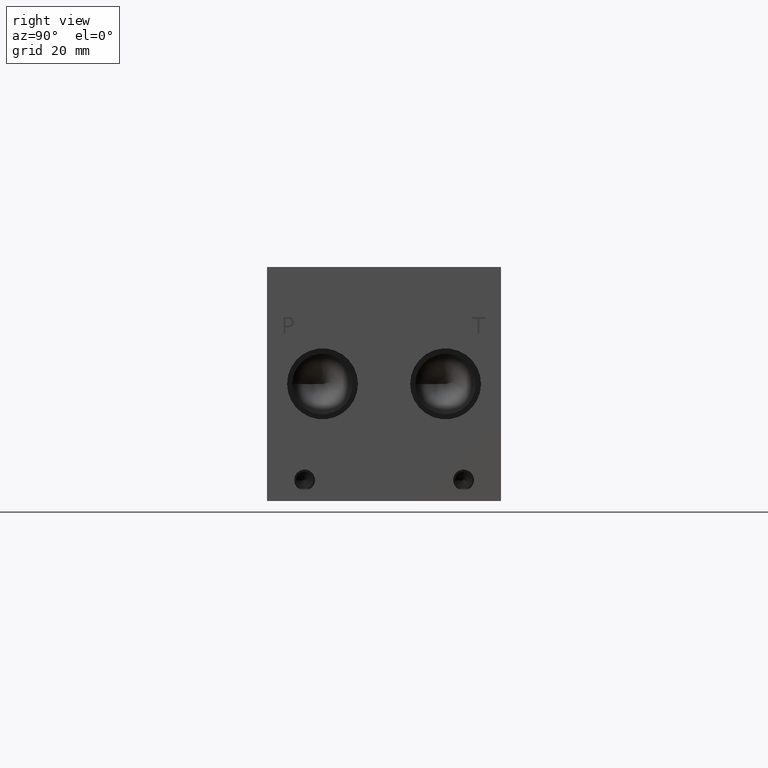
[diagram: clean part render]
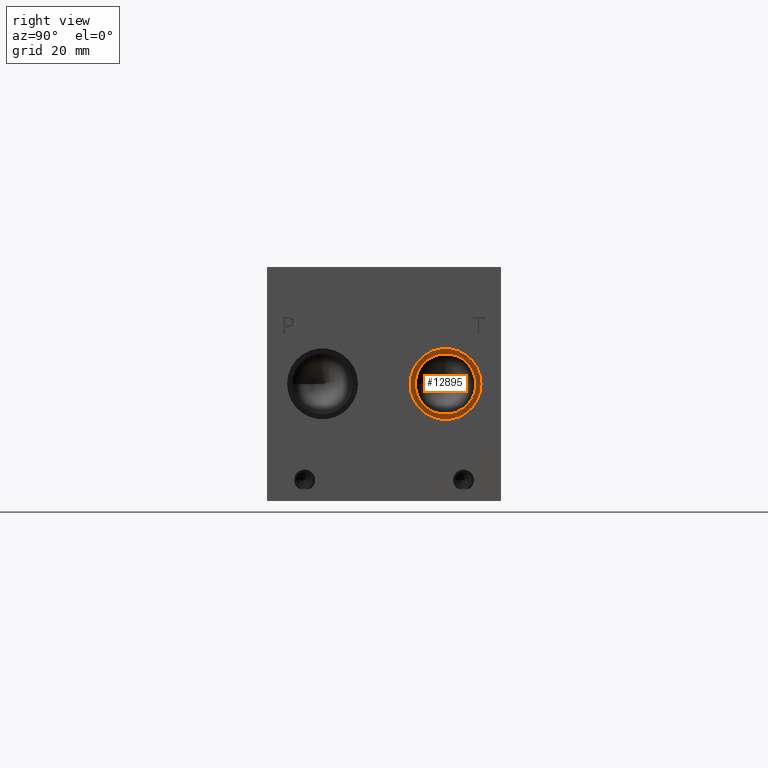
[diagram: same view with one face highlighted and labeled with its STEP entity id]
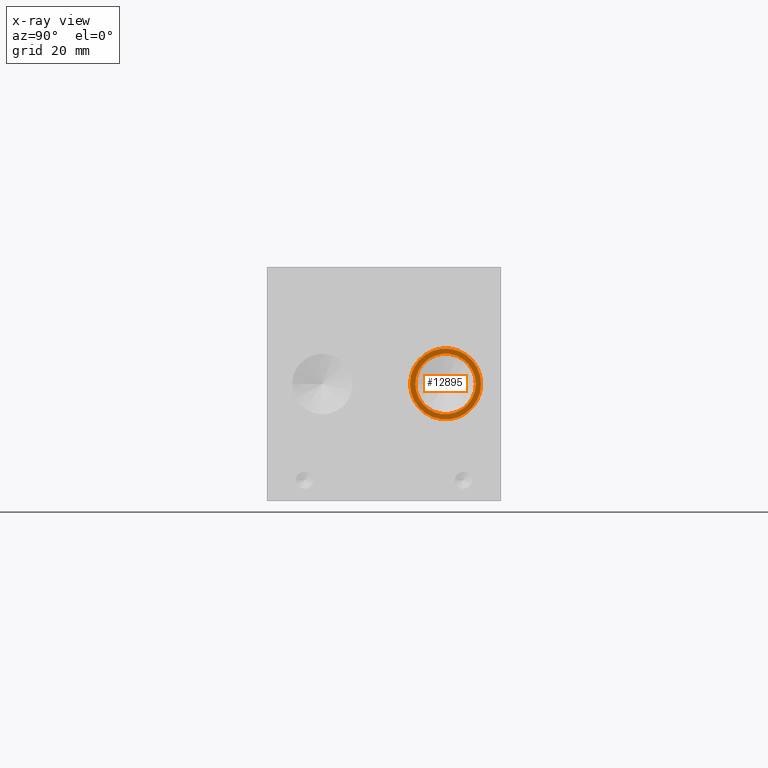
[diagram: x-ray of the same camera — body ghosted, the highlighted face saturated]
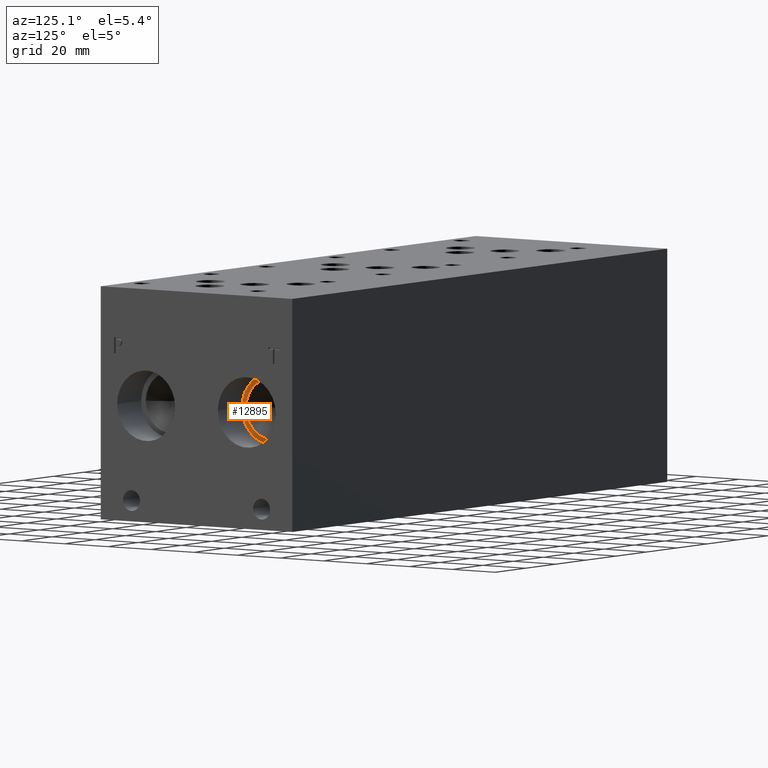
[diagram: same view with one face highlighted and labeled with its STEP entity id]
A machine part, right view. The second image highlights one B-rep face of the part: STEP entity #12895.
The next image is the same camera in x-ray: the body ghosted, the highlighted face saturated — about 0% of this face is hidden behind the body in this view.
A second angle (auxiliary view) of the same face is appended — the face is thin or edge-on in the first view.
In plain terms, the highlighted planar face has unit normal (1, 0, 0).
Its self-contained STEP definition (entity closure, byte-faithful):
#365=CIRCLE('',#13464,13.462);
#366=CIRCLE('',#13465,13.462);
#367=CIRCLE('',#13466,11.5062);
#965=FACE_BOUND('',#2305,.T.);
#1566=FACE_OUTER_BOUND('',#2304,.T.);
#2304=EDGE_LOOP('',(#10890,#10891));
#2305=EDGE_LOOP('',(#10892));
#5882=VERTEX_POINT('',#21843);
#5883=VERTEX_POINT('',#21844);
#5884=VERTEX_POINT('',#21847);
#7616=EDGE_CURVE('',#5882,#5883,#365,.T.);
#7617=EDGE_CURVE('',#5883,#5882,#366,.T.);
#7618=EDGE_CURVE('',#5884,#5884,#367,.T.);
#10890=ORIENTED_EDGE('',*,*,#7616,.T.);
#10891=ORIENTED_EDGE('',*,*,#7617,.T.);
#10892=ORIENTED_EDGE('',*,*,#7618,.F.);
#11803=PLANE('',#13463);
#12895=ADVANCED_FACE('',(#1566,#965),#11803,.T.);
#13463=AXIS2_PLACEMENT_3D('',#21842,#15742,#15743);
#13464=AXIS2_PLACEMENT_3D('',#21845,#15744,#15745);
#13465=AXIS2_PLACEMENT_3D('',#21846,#15746,#15747);
#13466=AXIS2_PLACEMENT_3D('',#21848,#15748,#15749);
#15742=DIRECTION('center_axis',(1.,0.,0.));
#15743=DIRECTION('ref_axis',(0.,1.,0.));
#15744=DIRECTION('center_axis',(1.,0.,0.));
#15745=DIRECTION('ref_axis',(0.,1.,0.));
#15746=DIRECTION('center_axis',(1.,0.,0.));
#15747=DIRECTION('ref_axis',(0.,1.,0.));
#15748=DIRECTION('center_axis',(1.,0.,0.));
#15749=DIRECTION('ref_axis',(0.,1.,0.));
#21842=CARTESIAN_POINT('Origin',(231.8004,67.818,44.45));
#21843=CARTESIAN_POINT('',(231.8004,81.28,44.45));
#21844=CARTESIAN_POINT('',(231.8004,54.356,44.45));
#21845=CARTESIAN_POINT('Origin',(231.8004,67.818,44.45));
#21846=CARTESIAN_POINT('Origin',(231.8004,67.818,44.45));
#21847=CARTESIAN_POINT('',(231.8004,56.3118,44.45));
#21848=CARTESIAN_POINT('Origin',(231.8004,67.818,44.45));